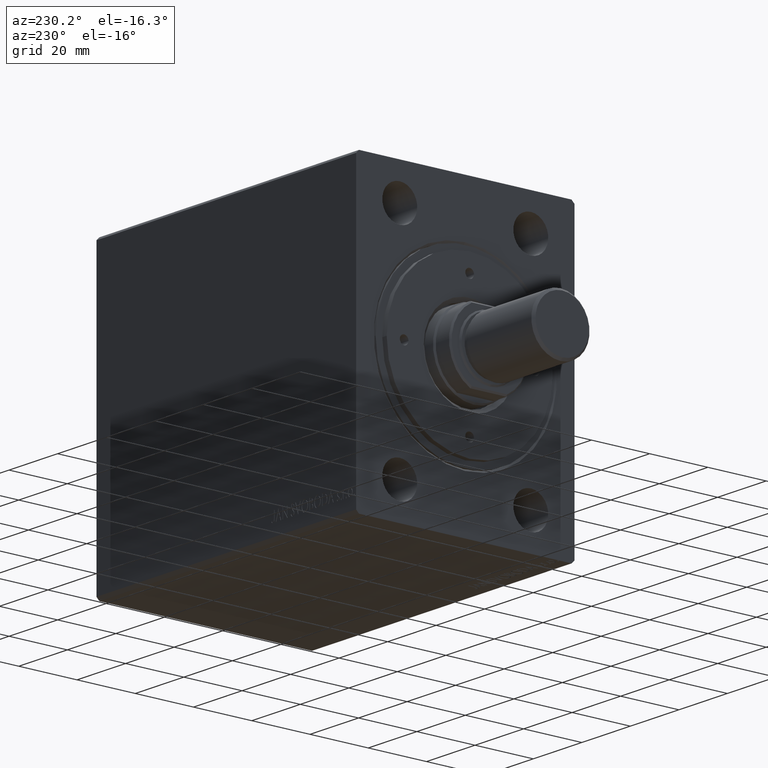
[diagram: clean part render]
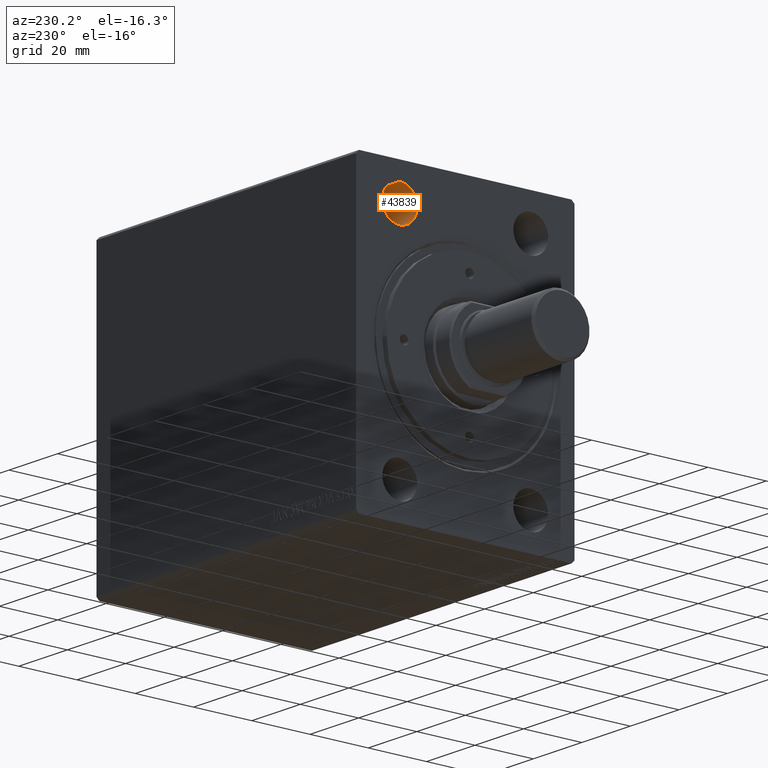
[diagram: same view with one face highlighted and labeled with its STEP entity id]
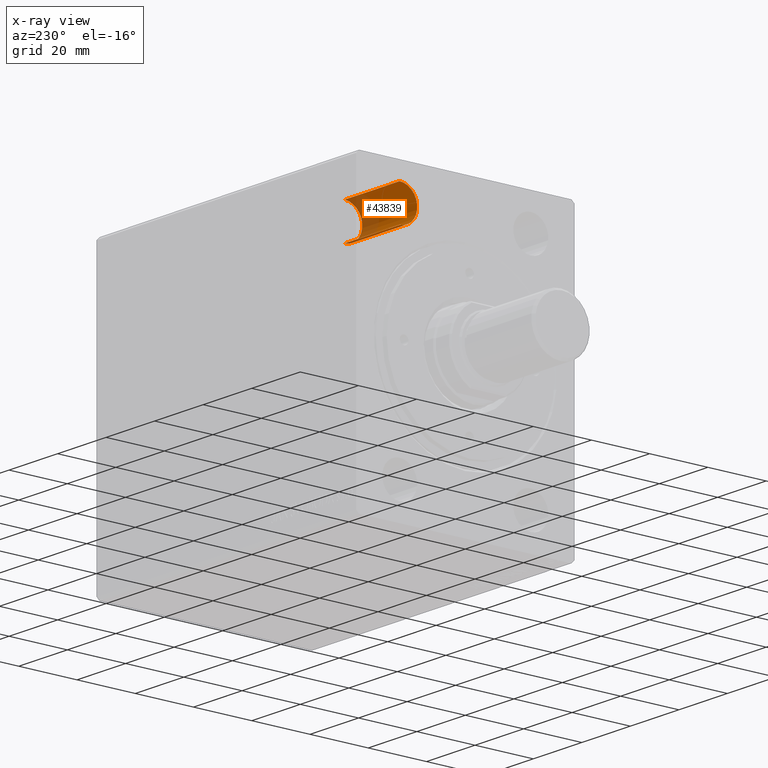
[diagram: x-ray of the same camera — body ghosted, the highlighted face saturated]
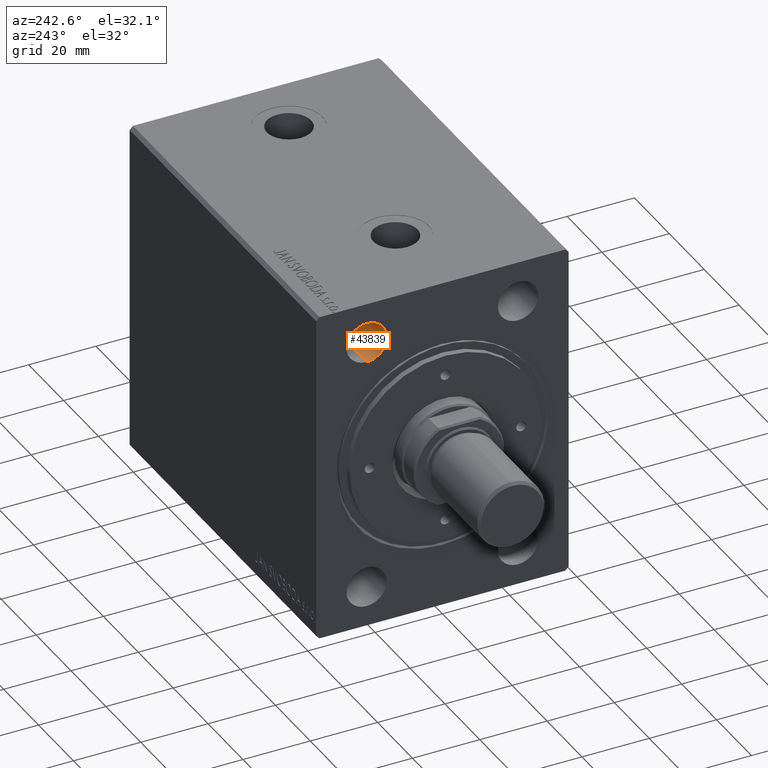
[diagram: same view with one face highlighted and labeled with its STEP entity id]
A machine part, auxiliary view. The second image highlights one B-rep face of the part: STEP entity #43839.
The next image is the same camera in x-ray: the body ghosted, the highlighted face saturated — about 30% of this face is hidden behind the body in this view.
A second angle (auxiliary view) of the same face is appended — the face is thin or edge-on in the first view.
In plain terms, the highlighted cylindrical surface (edge-blend (fillet) strip) has radius 6 mm, axis along (-1, -0, -0).
Its self-contained STEP definition (entity closure, byte-faithful):
#578 = ORIENTED_EDGE ( 'NONE', *, *, #22759, .F. ) ;
#782 = DIRECTION ( 'NONE',  ( -1.000000000000000000, -0.000000000000000000, -0.000000000000000000 ) ) ;
#1159 = CIRCLE ( 'NONE', #18424, 5.999999999999998224 ) ;
#2001 = EDGE_CURVE ( 'NONE', #42446, #34364, #22194, .T. ) ;
#4932 = DIRECTION ( 'NONE',  ( -1.000000000000000000, -0.000000000000000000, -0.000000000000000000 ) ) ;
#6437 = CARTESIAN_POINT ( 'NONE',  ( 2.449293598294703949E-16, 22.50000000000000000, 38.00000000000000000 ) ) ;
#8986 = CARTESIAN_POINT ( 'NONE',  ( 2.449293598294703949E-16, 22.50000000000000000, 44.00000000000000000 ) ) ;
#9842 = EDGE_LOOP ( 'NONE', ( #19476, #10234, #32103, #578 ) ) ;
#10234 = ORIENTED_EDGE ( 'NONE', *, *, #2001, .T. ) ;
#12449 = DIRECTION ( 'NONE',  ( -1.000000000000000000, -0.000000000000000000, -0.000000000000000000 ) ) ;
#12892 = AXIS2_PLACEMENT_3D ( 'NONE', #6437, #16801, #31147 ) ;
#13923 = CARTESIAN_POINT ( 'NONE',  ( 22.67000000000000171, 22.50000000000000000, 44.00000000000000000 ) ) ;
#15633 = VECTOR ( 'NONE', #12449, 1000.000000000000000 ) ;
#16801 = DIRECTION ( 'NONE',  ( -1.000000000000000000, -0.000000000000000000, -0.000000000000000000 ) ) ;
#18424 = AXIS2_PLACEMENT_3D ( 'NONE', #22015, #4932, #39542 ) ;
#18846 = DIRECTION ( 'NONE',  ( -1.000000000000000000, -0.000000000000000000, -0.000000000000000000 ) ) ;
#19209 = LINE ( 'NONE', #33111, #15633 ) ;
#19476 = ORIENTED_EDGE ( 'NONE', *, *, #33818, .F. ) ;
#21273 = CARTESIAN_POINT ( 'NONE',  ( 2.449293598294703949E-16, 22.50000000000000000, 32.00000000000000000 ) ) ;
#22015 = CARTESIAN_POINT ( 'NONE',  ( 22.67000000000000171, 22.50000000000000000, 38.00000000000000000 ) ) ;
#22194 = LINE ( 'NONE', #36115, #22365 ) ;
#22365 = VECTOR ( 'NONE', #18846, 1000.000000000000000 ) ;
#22759 = EDGE_CURVE ( 'NONE', #36022, #33901, #19209, .T. ) ;
#27080 = EDGE_CURVE ( 'NONE', #34364, #33901, #31548, .T. ) ;
#31147 = DIRECTION ( 'NONE',  ( 0.000000000000000000, 0.000000000000000000, 1.000000000000000000 ) ) ;
#31548 = CIRCLE ( 'NONE', #12892, 5.999999999999998224 ) ;
#32024 = CYLINDRICAL_SURFACE ( 'NONE', #32202, 5.999999999999998224 ) ;
#32103 = ORIENTED_EDGE ( 'NONE', *, *, #27080, .T. ) ;
#32202 = AXIS2_PLACEMENT_3D ( 'NONE', #32245, #782, #35395 ) ;
#32245 = CARTESIAN_POINT ( 'NONE',  ( 0.000000000000000000, 22.50000000000000000, 38.00000000000000000 ) ) ;
#33111 = CARTESIAN_POINT ( 'NONE',  ( 0.000000000000000000, 22.50000000000000000, 44.00000000000000000 ) ) ;
#33818 = EDGE_CURVE ( 'NONE', #42446, #36022, #1159, .T. ) ;
#33901 = VERTEX_POINT ( 'NONE', #8986 ) ;
#34364 = VERTEX_POINT ( 'NONE', #21273 ) ;
#35395 = DIRECTION ( 'NONE',  ( 0.000000000000000000, 0.000000000000000000, 1.000000000000000000 ) ) ;
#35826 = FACE_OUTER_BOUND ( 'NONE', #9842, .T. ) ;
#36022 = VERTEX_POINT ( 'NONE', #13923 ) ;
#36115 = CARTESIAN_POINT ( 'NONE',  ( 0.000000000000000000, 22.50000000000000000, 32.00000000000000000 ) ) ;
#36817 = CARTESIAN_POINT ( 'NONE',  ( 22.67000000000000171, 22.50000000000000000, 32.00000000000000000 ) ) ;
#39542 = DIRECTION ( 'NONE',  ( 0.000000000000000000, 0.000000000000000000, 1.000000000000000000 ) ) ;
#42446 = VERTEX_POINT ( 'NONE', #36817 ) ;
#43839 = ADVANCED_FACE ( 'NONE', ( #35826 ), #32024, .F. ) ;